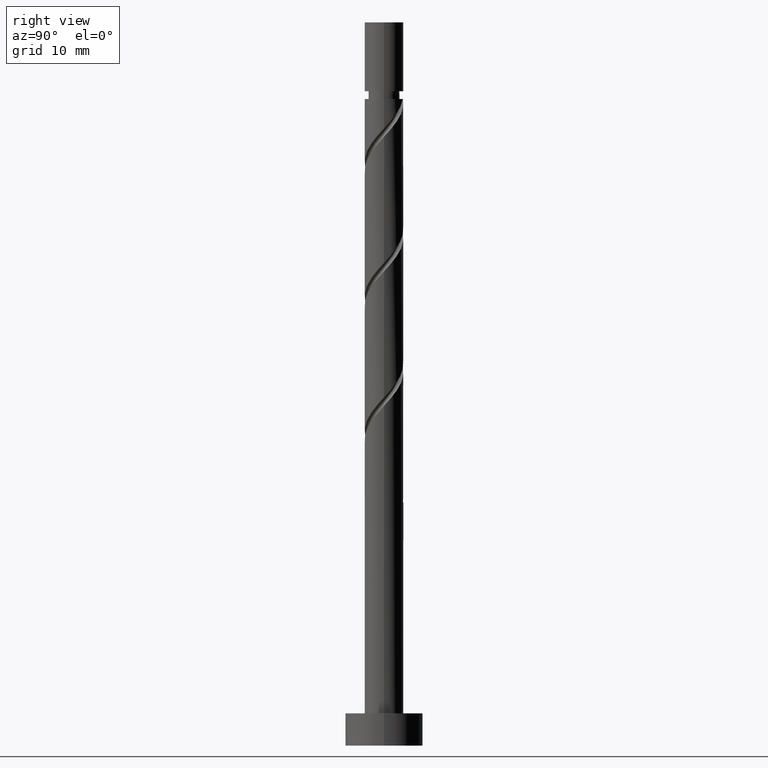
[diagram: clean part render]
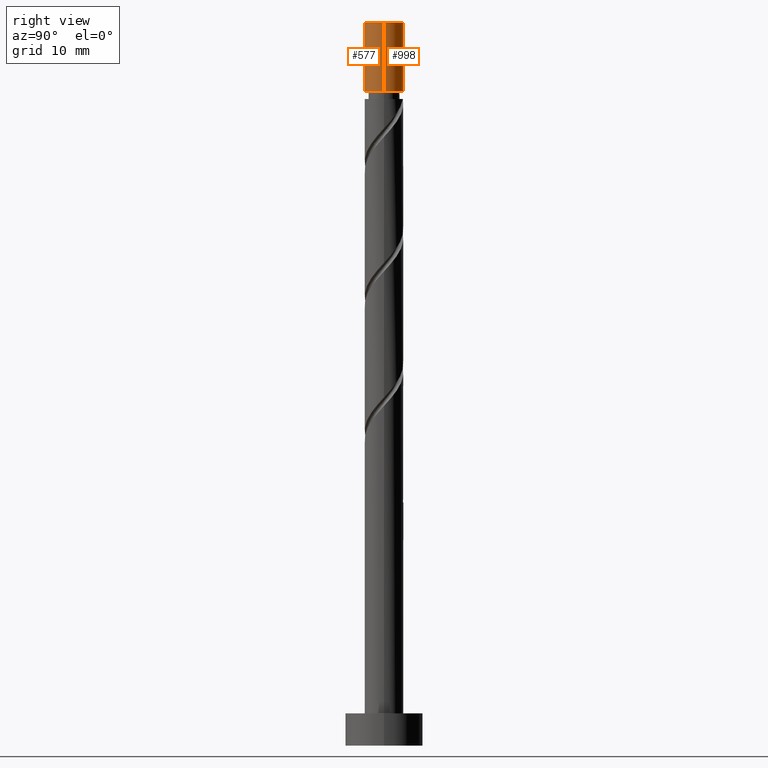
[diagram: same view with one multi-face feature highlighted, each face labeled with its STEP entity id]
A machine part, right view. The highlighted faces form ONE feature: a constant-radius fillet chain: 2 tangent blend faces with common blend radius 3 mm. The faces share edges in the B-rep.
Their STEP definitions:
[1] entity #998 (Cylinder):
#54 = LINE ( 'NONE', #537, #549 ) ;
#186 = CARTESIAN_POINT ( 'NONE',  ( 3.000000000000000444, 3.673940397442060361E-16, 101.3440058312118026 ) ) ;
#253 = CARTESIAN_POINT ( 'NONE',  ( 0.000000000000000000, 0.000000000000000000, 112.0000000000000000 ) ) ;
#262 = AXIS2_PLACEMENT_3D ( 'NONE', #253, #1235, #625 ) ;
#303 = CARTESIAN_POINT ( 'NONE',  ( -3.000000000000000444, 0.000000000000000000, 101.3440058312118026 ) ) ;
#442 = AXIS2_PLACEMENT_3D ( 'NONE', #450, #1069, #803 ) ;
#450 = CARTESIAN_POINT ( 'NONE',  ( 0.000000000000000000, 0.000000000000000000, 112.0000000000000000 ) ) ;
#524 = ORIENTED_EDGE ( 'NONE', *, *, #1117, .F. ) ;
#537 = CARTESIAN_POINT ( 'NONE',  ( -3.000000000000000444, 0.000000000000000000, 112.0000000000000000 ) ) ;
#549 = VECTOR ( 'NONE', #1512, 1000.000000000000000 ) ;
#566 = EDGE_CURVE ( 'NONE', #821, #1544, #1077, .T. ) ;
#616 = EDGE_LOOP ( 'NONE', ( #1374, #1127, #1236, #524 ) ) ;
#625 = DIRECTION ( 'NONE',  ( 1.000000000000000000, 0.000000000000000000, 0.000000000000000000 ) ) ;
#642 = DIRECTION ( 'NONE',  ( -0.000000000000000000, -0.000000000000000000, -1.000000000000000000 ) ) ;
#670 = VECTOR ( 'NONE', #1212, 1000.000000000000000 ) ;
#695 = AXIS2_PLACEMENT_3D ( 'NONE', #1249, #642, #1128 ) ;
#722 = LINE ( 'NONE', #1464, #670 ) ;
#796 = FACE_OUTER_BOUND ( 'NONE', #616, .T. ) ;
#803 = DIRECTION ( 'NONE',  ( -1.000000000000000000, 0.000000000000000000, 0.000000000000000000 ) ) ;
#821 = VERTEX_POINT ( 'NONE', #1266 ) ;
#976 = EDGE_CURVE ( 'NONE', #821, #1015, #722, .T. ) ;
#988 = VERTEX_POINT ( 'NONE', #303 ) ;
#998 = ADVANCED_FACE ( 'NONE', ( #796 ), #1433, .T. ) ;
#1015 = VERTEX_POINT ( 'NONE', #186 ) ;
#1069 = DIRECTION ( 'NONE',  ( -0.000000000000000000, -0.000000000000000000, -1.000000000000000000 ) ) ;
#1077 = CIRCLE ( 'NONE', #262, 3.000000000000000444 ) ;
#1117 = EDGE_CURVE ( 'NONE', #1544, #988, #54, .T. ) ;
#1127 = ORIENTED_EDGE ( 'NONE', *, *, #976, .T. ) ;
#1128 = DIRECTION ( 'NONE',  ( -1.000000000000000000, 0.000000000000000000, 0.000000000000000000 ) ) ;
#1212 = DIRECTION ( 'NONE',  ( -0.000000000000000000, -0.000000000000000000, -1.000000000000000000 ) ) ;
#1235 = DIRECTION ( 'NONE',  ( 0.000000000000000000, 0.000000000000000000, 1.000000000000000000 ) ) ;
#1236 = ORIENTED_EDGE ( 'NONE', *, *, #1268, .F. ) ;
#1249 = CARTESIAN_POINT ( 'NONE',  ( 0.000000000000000000, 0.000000000000000000, 101.3440058312118026 ) ) ;
#1266 = CARTESIAN_POINT ( 'NONE',  ( 3.000000000000000444, 3.673940397442060361E-16, 112.0000000000000000 ) ) ;
#1268 = EDGE_CURVE ( 'NONE', #988, #1015, #1499, .T. ) ;
#1374 = ORIENTED_EDGE ( 'NONE', *, *, #566, .F. ) ;
#1433 = CYLINDRICAL_SURFACE ( 'NONE', #442, 3.000000000000000444 ) ;
#1464 = CARTESIAN_POINT ( 'NONE',  ( 3.000000000000000444, 3.673940397442060361E-16, 112.0000000000000000 ) ) ;
#1499 = CIRCLE ( 'NONE', #695, 3.000000000000000444 ) ;
#1503 = CARTESIAN_POINT ( 'NONE',  ( -3.000000000000000444, 0.000000000000000000, 112.0000000000000000 ) ) ;
#1512 = DIRECTION ( 'NONE',  ( -0.000000000000000000, -0.000000000000000000, -1.000000000000000000 ) ) ;
#1544 = VERTEX_POINT ( 'NONE', #1503 ) ;
[2] entity #577 (Cylinder):
#36 = CARTESIAN_POINT ( 'NONE',  ( 0.000000000000000000, 0.000000000000000000, 101.3440058312118026 ) ) ;
#54 = LINE ( 'NONE', #537, #549 ) ;
#81 = AXIS2_PLACEMENT_3D ( 'NONE', #36, #1233, #232 ) ;
#166 = DIRECTION ( 'NONE',  ( 1.000000000000000000, 0.000000000000000000, 0.000000000000000000 ) ) ;
#186 = CARTESIAN_POINT ( 'NONE',  ( 3.000000000000000444, 3.673940397442060361E-16, 101.3440058312118026 ) ) ;
#224 = CYLINDRICAL_SURFACE ( 'NONE', #1048, 3.000000000000000444 ) ;
#232 = DIRECTION ( 'NONE',  ( -1.000000000000000000, 0.000000000000000000, 0.000000000000000000 ) ) ;
#303 = CARTESIAN_POINT ( 'NONE',  ( -3.000000000000000444, 0.000000000000000000, 101.3440058312118026 ) ) ;
#350 = DIRECTION ( 'NONE',  ( -0.000000000000000000, -0.000000000000000000, -1.000000000000000000 ) ) ;
#371 = EDGE_LOOP ( 'NONE', ( #447, #775, #1385, #791 ) ) ;
#447 = ORIENTED_EDGE ( 'NONE', *, *, #976, .F. ) ;
#537 = CARTESIAN_POINT ( 'NONE',  ( -3.000000000000000444, 0.000000000000000000, 112.0000000000000000 ) ) ;
#549 = VECTOR ( 'NONE', #1512, 1000.000000000000000 ) ;
#577 = ADVANCED_FACE ( 'NONE', ( #733 ), #224, .T. ) ;
#615 = DIRECTION ( 'NONE',  ( -1.000000000000000000, 0.000000000000000000, 0.000000000000000000 ) ) ;
#670 = VECTOR ( 'NONE', #1212, 1000.000000000000000 ) ;
#722 = LINE ( 'NONE', #1464, #670 ) ;
#733 = FACE_OUTER_BOUND ( 'NONE', #371, .T. ) ;
#770 = CIRCLE ( 'NONE', #81, 3.000000000000000444 ) ;
#775 = ORIENTED_EDGE ( 'NONE', *, *, #1085, .F. ) ;
#791 = ORIENTED_EDGE ( 'NONE', *, *, #1327, .F. ) ;
#821 = VERTEX_POINT ( 'NONE', #1266 ) ;
#923 = CIRCLE ( 'NONE', #1023, 3.000000000000000444 ) ;
#976 = EDGE_CURVE ( 'NONE', #821, #1015, #722, .T. ) ;
#988 = VERTEX_POINT ( 'NONE', #303 ) ;
#1015 = VERTEX_POINT ( 'NONE', #186 ) ;
#1023 = AXIS2_PLACEMENT_3D ( 'NONE', #1521, #1271, #166 ) ;
#1048 = AXIS2_PLACEMENT_3D ( 'NONE', #1245, #350, #615 ) ;
#1085 = EDGE_CURVE ( 'NONE', #1544, #821, #923, .T. ) ;
#1117 = EDGE_CURVE ( 'NONE', #1544, #988, #54, .T. ) ;
#1212 = DIRECTION ( 'NONE',  ( -0.000000000000000000, -0.000000000000000000, -1.000000000000000000 ) ) ;
#1233 = DIRECTION ( 'NONE',  ( -0.000000000000000000, -0.000000000000000000, -1.000000000000000000 ) ) ;
#1245 = CARTESIAN_POINT ( 'NONE',  ( 0.000000000000000000, 0.000000000000000000, 112.0000000000000000 ) ) ;
#1266 = CARTESIAN_POINT ( 'NONE',  ( 3.000000000000000444, 3.673940397442060361E-16, 112.0000000000000000 ) ) ;
#1271 = DIRECTION ( 'NONE',  ( 0.000000000000000000, 0.000000000000000000, 1.000000000000000000 ) ) ;
#1327 = EDGE_CURVE ( 'NONE', #1015, #988, #770, .T. ) ;
#1385 = ORIENTED_EDGE ( 'NONE', *, *, #1117, .T. ) ;
#1464 = CARTESIAN_POINT ( 'NONE',  ( 3.000000000000000444, 3.673940397442060361E-16, 112.0000000000000000 ) ) ;
#1503 = CARTESIAN_POINT ( 'NONE',  ( -3.000000000000000444, 0.000000000000000000, 112.0000000000000000 ) ) ;
#1512 = DIRECTION ( 'NONE',  ( -0.000000000000000000, -0.000000000000000000, -1.000000000000000000 ) ) ;
#1521 = CARTESIAN_POINT ( 'NONE',  ( 0.000000000000000000, 0.000000000000000000, 112.0000000000000000 ) ) ;
#1544 = VERTEX_POINT ( 'NONE', #1503 ) ;